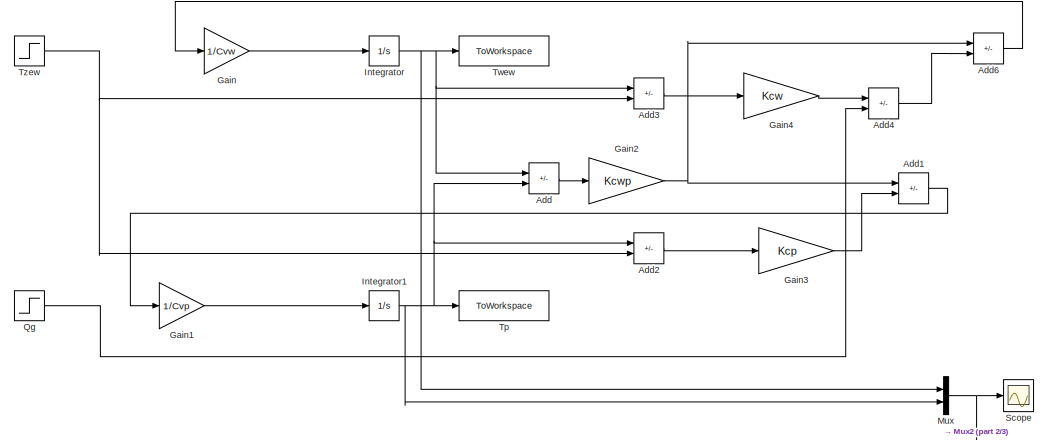
[diagram: root canvas - part 1/3, top center region]
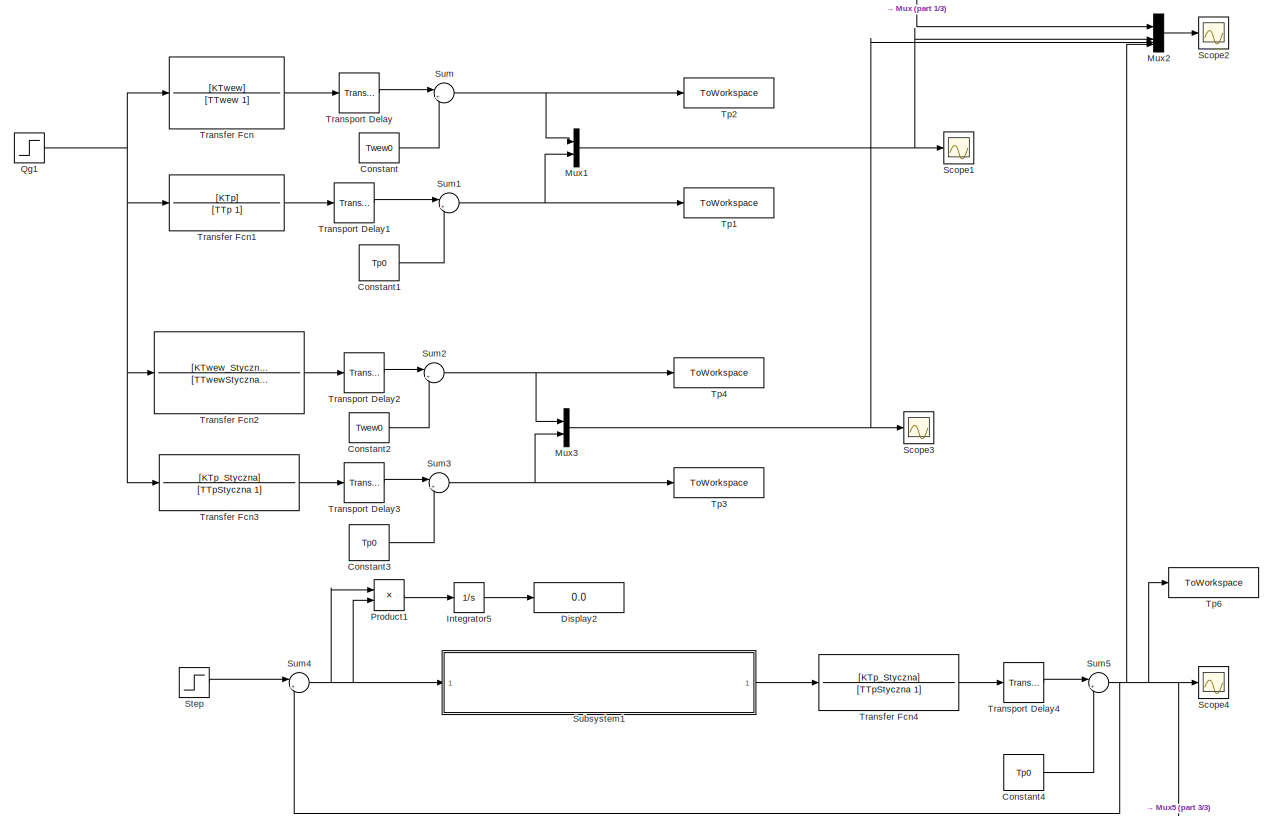
[diagram: root canvas - part 2/3, full width, middle band]
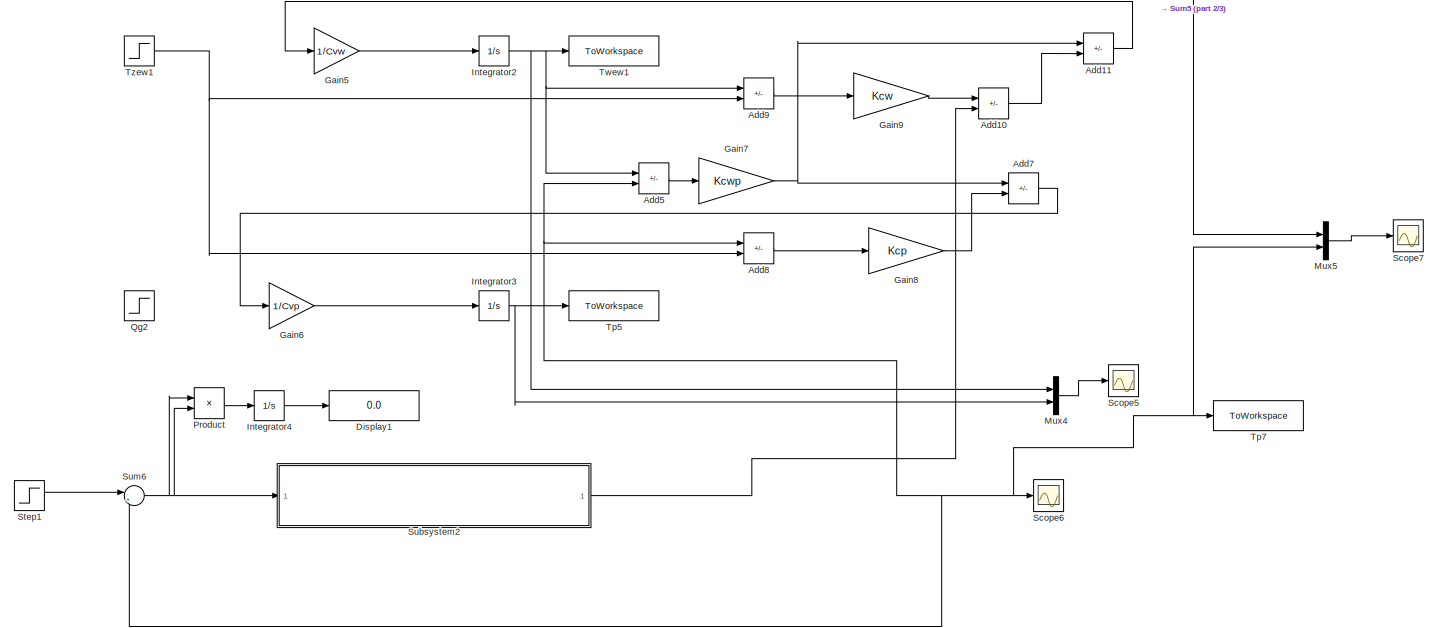
[diagram: root canvas - part 3/3, full width, bottom band]
MODEL slx_7dc4cdaffe7d
KIND model
CONFIG AbsTol = auto
CONFIG EnableMultiTasking = off
CONFIG FixedStep = auto
CONFIG MaxStep = auto
CONFIG MinStep = auto
CONFIG RelTol = 1e-3
CONFIG SampleTimeConstraint = Unconstrained
CONFIG SolverName = VariableStepAuto
CONFIG StartTime = 0.0
CONFIG StopTime = czas_symulacji
BLOCK [Sum] Add
  IconShape = rectangular
  Inputs = +-
BLOCK [Sum] Add1
  IconShape = rectangular
  Inputs = +-
BLOCK [Sum] Add10
  IconShape = rectangular
  Inputs = -+
BLOCK [Sum] Add11
  IconShape = rectangular
  Inputs = -+
BLOCK [Sum] Add2
  IconShape = rectangular
  Inputs = +-
BLOCK [Sum] Add3
  IconShape = rectangular
  Inputs = +-
BLOCK [Sum] Add4
  IconShape = rectangular
  Inputs = -+
BLOCK [Sum] Add5
  IconShape = rectangular
  Inputs = +-
BLOCK [Sum] Add6
  IconShape = rectangular
  Inputs = -+
BLOCK [Sum] Add7
  IconShape = rectangular
  Inputs = +-
BLOCK [Sum] Add8
  IconShape = rectangular
  Inputs = +-
BLOCK [Sum] Add9
  IconShape = rectangular
  Inputs = +-
BLOCK [Constant] Constant
  Value = Twew0
BLOCK [Constant] Constant1
  Value = Tp0
BLOCK [Constant] Constant2
  Value = Twew0
BLOCK [Constant] Constant3
  Value = Tp0
BLOCK [Constant] Constant4
  Value = Tp0
BLOCK [Display] Display1
  Decimation = 1
BLOCK [Display] Display2
  Decimation = 1
BLOCK [Gain] Gain
  Gain = 1/Cvw
BLOCK [Gain] Gain1
  Gain = 1/Cvp
BLOCK [Gain] Gain2
  Gain = Kcwp
BLOCK [Gain] Gain3
  Gain = Kcp
BLOCK [Gain] Gain4
  Gain = Kcw
BLOCK [Gain] Gain5
  Gain = 1/Cvw
BLOCK [Gain] Gain6
  Gain = 1/Cvp
BLOCK [Gain] Gain7
  Gain = Kcwp
BLOCK [Gain] Gain8
  Gain = Kcp
BLOCK [Gain] Gain9
  Gain = Kcw
BLOCK [Integrator] Integrator
  InitialCondition = Twew0
BLOCK [Integrator] Integrator1
  InitialCondition = Tp0
BLOCK [Integrator] Integrator2
  InitialCondition = Twew0
BLOCK [Integrator] Integrator3
  InitialCondition = Tp0
BLOCK [Integrator] Integrator4
BLOCK [Integrator] Integrator5
BLOCK [Mux] Mux
  DisplayOption = bar
  Inputs = 2
BLOCK [Mux] Mux1
  DisplayOption = bar
  Inputs = 2
BLOCK [Mux] Mux2
  DisplayOption = bar
BLOCK [Mux] Mux3
  DisplayOption = bar
  Inputs = 2
BLOCK [Mux] Mux4
  DisplayOption = bar
  Inputs = 2
BLOCK [Mux] Mux5
  DisplayOption = bar
  Inputs = 2
BLOCK [Product] Product
BLOCK [Product] Product1
BLOCK [Step] Qg
  After = Qg0 + dQg
  Before = Qg0
  SampleTime = 0
  Time = t0
BLOCK [Step] Qg1
  After = dQg
  SampleTime = 0
  Time = t0
BLOCK [Step] Qg2
  After = Qg0 + dQg
  Before = Qg0
  SampleTime = 0
  Time = t0
BLOCK [Scope] Scope
  Floating = off
  NumInputPorts = 1
  ScopeSpecificationString = Simulink.scopes.TimeScopeBlockCfg('CurrentConfiguration', extmgr.ConfigurationSet(extmgr.Configuration('Core','General UI',true),extmgr.Configuration('Core','Source UI',true),extmgr.Configuration('Sources','WiredSimulink',true),extmgr.Configuration('Visuals','Time Domain',true,'SerializedDisplays',{struct('MinYLimReal','-5.00000','MaxYLimReal','21.19398','YLabelReal','','MinYLimMag','0.00000','Max...<+1425ch>
BLOCK [Scope] Scope1
  Floating = off
  NumInputPorts = 1
  ScopeSpecificationString = Simulink.scopes.TimeScopeBlockCfg('CurrentConfiguration', extmgr.ConfigurationSet(extmgr.Configuration('Core','General UI',true),extmgr.Configuration('Core','Source UI',true),extmgr.Configuration('Sources','WiredSimulink',true,'DataLoggingVariableName','ScopeData1'),extmgr.Configuration('Visuals','Time Domain',true,'SerializedDisplays',{struct('MinYLimReal','8.25375','MaxYLimReal','25.71625','YLab...<+1402ch>
BLOCK [Scope] Scope2
  Floating = off
  NumInputPorts = 1
  ScopeSpecificationString = Simulink.scopes.TimeScopeBlockCfg('CurrentConfiguration', extmgr.ConfigurationSet(extmgr.Configuration('Core','General UI',true),extmgr.Configuration('Core','Source UI',true),extmgr.Configuration('Sources','WiredSimulink',true,'DataLoggingVariableName','ScopeData2'),extmgr.Configuration('Visuals','Time Domain',true,'SerializedDisplays',{struct('MinYLimReal','3.92972','MaxYLimReal','26.23002','YLab...<+1492ch>
BLOCK [Scope] Scope3
  Floating = off
  NumInputPorts = 1
  ScopeSpecificationString = Simulink.scopes.TimeScopeBlockCfg('CurrentConfiguration', extmgr.ConfigurationSet(extmgr.Configuration('Core','General UI',true),extmgr.Configuration('Core','Source UI',true),extmgr.Configuration('Sources','WiredSimulink',true,'DataLoggingVariableName','ScopeData1'),extmgr.Configuration('Visuals','Time Domain',true,'SerializedDisplays',{struct('MinYLimReal','8.25375','MaxYLimReal','25.71625','YLab...<+1372ch>
BLOCK [Scope] Scope4
  Floating = off
  NumInputPorts = 1
  ScopeSpecificationString = Simulink.scopes.TimeScopeBlockCfg('CurrentConfiguration', extmgr.ConfigurationSet(extmgr.Configuration('Core','General UI',true),extmgr.Configuration('Core','Source UI',true),extmgr.Configuration('Sources','WiredSimulink',true,'DataLoggingVariableName','ScopeData1'),extmgr.Configuration('Visuals','Time Domain',true,'SerializedDisplays',{struct('MinYLimReal','4.07591','MaxYLimReal','24.91431','YLab...<+1467ch>
BLOCK [Scope] Scope5
  Floating = off
  NumInputPorts = 1
  ScopeSpecificationString = Simulink.scopes.TimeScopeBlockCfg('CurrentConfiguration', extmgr.ConfigurationSet(extmgr.Configuration('Core','General UI',true),extmgr.Configuration('Core','Source UI',true),extmgr.Configuration('Sources','WiredSimulink',true,'DataLoggingVariableName','ScopeData1'),extmgr.Configuration('Visuals','Time Domain',true,'SerializedDisplays',{struct('MinYLimReal','-11.01045','MaxYLimReal','54.37134','YL...<+1467ch>
BLOCK [Scope] Scope6
  Floating = off
  NumInputPorts = 1
  ScopeSpecificationString = Simulink.scopes.TimeScopeBlockCfg('CurrentConfiguration', extmgr.ConfigurationSet(extmgr.Configuration('Core','General UI',true),extmgr.Configuration('Core','Source UI',true),extmgr.Configuration('Sources','WiredSimulink',true,'DataLoggingVariableName','ScopeData2'),extmgr.Configuration('Visuals','Time Domain',true,'SerializedDisplays',{struct('MinYLimReal','1.80331','MaxYLimReal','70.34275','YLab...<+1474ch>
BLOCK [Scope] Scope7
  Floating = off
  NumInputPorts = 1
  ScopeSpecificationString = Simulink.scopes.TimeScopeBlockCfg('CurrentConfiguration', extmgr.ConfigurationSet(extmgr.Configuration('Core','General UI',true),extmgr.Configuration('Core','Source UI',true),extmgr.Configuration('Sources','WiredSimulink',true,'DataLoggingVariableName','ScopeData1'),extmgr.Configuration('Visuals','Time Domain',true,'SerializedDisplays',{struct('MinYLimReal','9.56975','MaxYLimReal','13.87226','YLab...<+1379ch>
BLOCK [Step] Step
  After = 13
  Before = Tp0
  SampleTime = 0
  Time = t0
BLOCK [Step] Step1
  After = 13
  Before = Tp0
  SampleTime = 0
  Time = t0
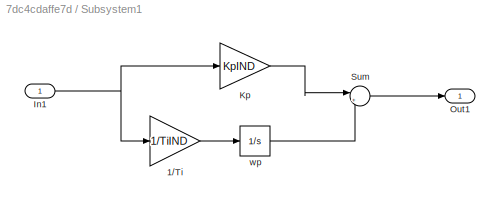
BLOCK [SubSystem] Subsystem1
BLOCK [Gain] Subsystem1/1//Ti
  Gain = 1/TiIND
BLOCK [Inport] Subsystem1/In1
BLOCK [Gain] Subsystem1/Kp
  Gain = KpIND
BLOCK [Outport] Subsystem1/Out1
BLOCK [Sum] Subsystem1/Sum
  Inputs = |++
BLOCK [Integrator] Subsystem1/wp
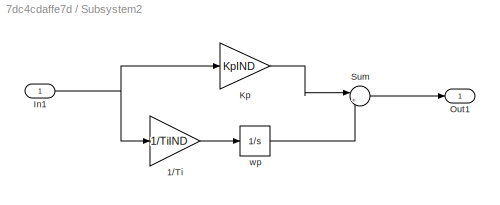
BLOCK [SubSystem] Subsystem2
BLOCK [Gain] Subsystem2/1//Ti
  Gain = 1/TiIND
BLOCK [Inport] Subsystem2/In1
BLOCK [Gain] Subsystem2/Kp
  Gain = KpIND
BLOCK [Outport] Subsystem2/Out1
BLOCK [Sum] Subsystem2/Sum
  Inputs = |++
BLOCK [Integrator] Subsystem2/wp
  InitialCondition = Qg0
BLOCK [Sum] Sum
  Inputs = |++
BLOCK [Sum] Sum1
  Inputs = |++
BLOCK [Sum] Sum2
  Inputs = |++
BLOCK [Sum] Sum3
  Inputs = |++
BLOCK [Sum] Sum4
  Inputs = |+-
BLOCK [Sum] Sum5
  Inputs = |++
BLOCK [Sum] Sum6
  Inputs = |+-
BLOCK [ToWorkspace] Tp
  FixptAsFi = on
  MaxDataPoints = inf
  SampleTime = -1
  VariableName = Tp
BLOCK [ToWorkspace] Tp1
  FixptAsFi = on
  MaxDataPoints = inf
  SampleTime = -1
  VariableName = Tp1
BLOCK [ToWorkspace] Tp2
  FixptAsFi = on
  MaxDataPoints = inf
  SampleTime = -1
  VariableName = Twew1
BLOCK [ToWorkspace] Tp3
  FixptAsFi = on
  MaxDataPoints = inf
  SampleTime = -1
  VariableName = Tp2
BLOCK [ToWorkspace] Tp4
  FixptAsFi = on
  MaxDataPoints = inf
  SampleTime = -1
  VariableName = Twew2
BLOCK [ToWorkspace] Tp5
  FixptAsFi = on
  MaxDataPoints = inf
  SampleTime = -1
  VariableName = Tp3
BLOCK [ToWorkspace] Tp6
  FixptAsFi = on
  MaxDataPoints = inf
  SampleTime = -1
  VariableName = Tp4
BLOCK [ToWorkspace] Tp7
  FixptAsFi = on
  MaxDataPoints = inf
  SampleTime = -1
  VariableName = Tp5
BLOCK [TransferFcn] Transfer Fcn
  Denominator = [TTwew 1]
  Numerator = [KTwew]
BLOCK [TransferFcn] Transfer Fcn1
  Denominator = [TTp 1]
  Numerator = [KTp]
BLOCK [TransferFcn] Transfer Fcn2
  Denominator = [TTwewStyczna 1]
  Numerator = [KTwew_Styczna]
BLOCK [TransferFcn] Transfer Fcn3
  Denominator = [TTpStyczna 1]
  Numerator = [KTp_Styczna]
BLOCK [TransferFcn] Transfer Fcn4
  Denominator = [TTpStyczna 1]
  Numerator = [KTp_Styczna]
BLOCK [TransportDelay] Transport Delay
  DelayTime = T0Twew
BLOCK [TransportDelay] Transport Delay1
  DelayTime = T0Tp
BLOCK [TransportDelay] Transport Delay2
  DelayTime = T0TwewStyczna
BLOCK [TransportDelay] Transport Delay3
  DelayTime = T0TpStyczna
BLOCK [TransportDelay] Transport Delay4
  DelayTime = T0TpStyczna
BLOCK [ToWorkspace] Twew
  FixptAsFi = on
  MaxDataPoints = inf
  SampleTime = -1
  VariableName = Twew
BLOCK [ToWorkspace] Twew1
  FixptAsFi = on
  MaxDataPoints = inf
  SampleTime = -1
  VariableName = Twew3
BLOCK [Step] Tzew
  After = Tzew0 + dTzew
  Before = Tzew0
  SampleTime = 0
  Time = t0
BLOCK [Step] Tzew1
  After = Tzew0 + dTzew
  Before = Tzew0
  SampleTime = 0
  Time = t0
LINE Add10:1 -> Add11:2
LINE Add11:1 -> Gain5:1
LINE Add1:1 -> Gain1:1
LINE Add2:1 -> Gain3:1
LINE Add3:1 -> Gain4:1
LINE Add4:1 -> Add6:2
LINE Add5:1 -> Gain7:1
LINE Add6:1 -> Gain:1
LINE Add7:1 -> Gain6:1
LINE Add8:1 -> Gain8:1
LINE Add9:1 -> Gain9:1
LINE Add:1 -> Gain2:1
LINE Constant1:1 -> Sum1:2
LINE Constant2:1 -> Sum2:2
LINE Constant3:1 -> Sum3:2
LINE Constant4:1 -> Sum5:2
LINE Constant:1 -> Sum:2
LINE Gain1:1 -> Integrator1:1
NET Gain2:1 -> Add1:1, Add6:1
LINE Gain3:1 -> Add1:2
LINE Gain4:1 -> Add4:1
LINE Gain5:1 -> Integrator2:1
LINE Gain6:1 -> Integrator3:1
NET Gain7:1 -> Add11:1, Add7:1
LINE Gain8:1 -> Add7:2
LINE Gain9:1 -> Add10:1
LINE Gain:1 -> Integrator:1
NET Integrator1:1 -> Add2:1, Add:2, Mux:2, Tp:1
NET Integrator2:1 -> Add5:1, Add9:1, Mux4:1, Twew1:1
NET Integrator3:1 -> Add5:2, Add8:1, Mux4:2, Mux5:2, Scope6:1, Sum6:2, Tp5:1, Tp7:1
LINE Integrator4:1 -> Display1:1
LINE Integrator5:1 -> Display2:1
NET Integrator:1 -> Add3:1, Add:1, Mux:1, Twew:1
NET Mux1:1 -> Mux2:2, Scope1:1
LINE Mux2:1 -> Scope2:1
NET Mux3:1 -> Mux2:3, Scope3:1
LINE Mux4:1 -> Scope5:1
LINE Mux5:1 -> Scope7:1
NET Mux:1 -> Mux2:1, Scope:1
LINE Product1:1 -> Integrator5:1
LINE Product:1 -> Integrator4:1
NET Qg1:1 -> Transfer Fcn1:1, Transfer Fcn2:1, Transfer Fcn3:1, Transfer Fcn:1
LINE Qg:1 -> Add4:2
LINE Step1:1 -> Sum6:1
LINE Step:1 -> Sum4:1
LINE Subsystem1/1//Ti:1 -> Subsystem1/wp:1
NET Subsystem1/In1:1 -> Subsystem1/1//Ti:1, Subsystem1/Kp:1
LINE Subsystem1/Kp:1 -> Subsystem1/Sum:1
LINE Subsystem1/Sum:1 -> Subsystem1/Out1:1
LINE Subsystem1/wp:1 -> Subsystem1/Sum:2
LINE Subsystem1:1 -> Transfer Fcn4:1
LINE Subsystem2/1//Ti:1 -> Subsystem2/wp:1
NET Subsystem2/In1:1 -> Subsystem2/1//Ti:1, Subsystem2/Kp:1
LINE Subsystem2/Kp:1 -> Subsystem2/Sum:1
LINE Subsystem2/Sum:1 -> Subsystem2/Out1:1
LINE Subsystem2/wp:1 -> Subsystem2/Sum:2
LINE Subsystem2:1 -> Add10:2
NET Sum1:1 -> Mux1:2, Tp1:1
NET Sum2:1 -> Mux3:1, Tp4:1
NET Sum3:1 -> Mux3:2, Tp3:1
NET Sum4:1 -> Product1:1, Product1:2, Subsystem1:1
NET Sum5:1 -> Mux2:4, Mux5:1, Scope4:1, Sum4:2, Tp6:1
NET Sum6:1 -> Product:1, Product:2, Subsystem2:1
NET Sum:1 -> Mux1:1, Tp2:1
LINE Transfer Fcn1:1 -> Transport Delay1:1
LINE Transfer Fcn2:1 -> Transport Delay2:1
LINE Transfer Fcn3:1 -> Transport Delay3:1
LINE Transfer Fcn4:1 -> Transport Delay4:1
LINE Transfer Fcn:1 -> Transport Delay:1
LINE Transport Delay1:1 -> Sum1:1
LINE Transport Delay2:1 -> Sum2:1
LINE Transport Delay3:1 -> Sum3:1
LINE Transport Delay4:1 -> Sum5:1
LINE Transport Delay:1 -> Sum:1
NET Tzew1:1 -> Add8:2, Add9:2
NET Tzew:1 -> Add2:2, Add3:2
note: NET lines group one-source signal fan-out (src -> all destinations, sorted); 1:1 wires keep LINE
